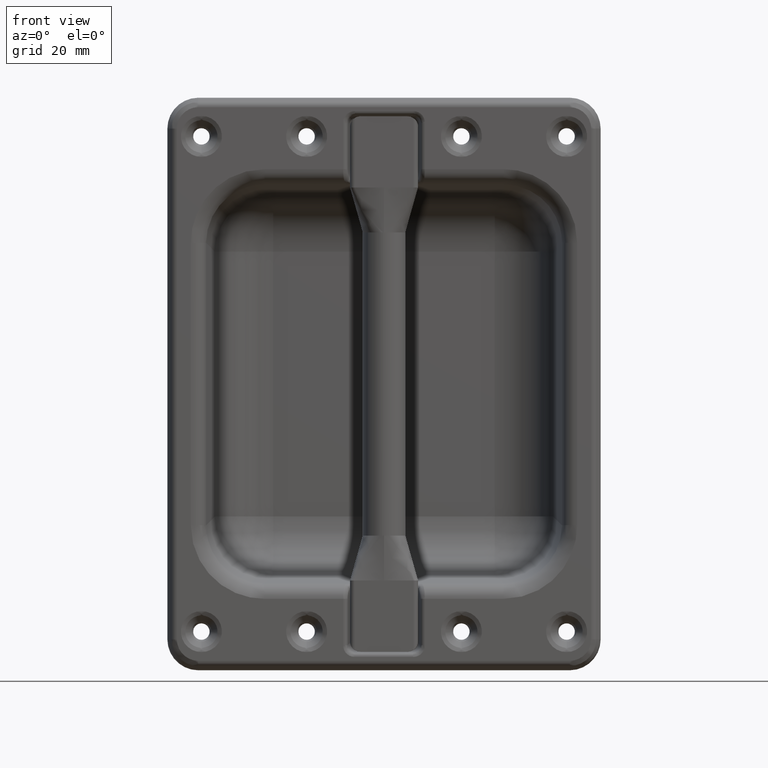
[diagram: clean part render]
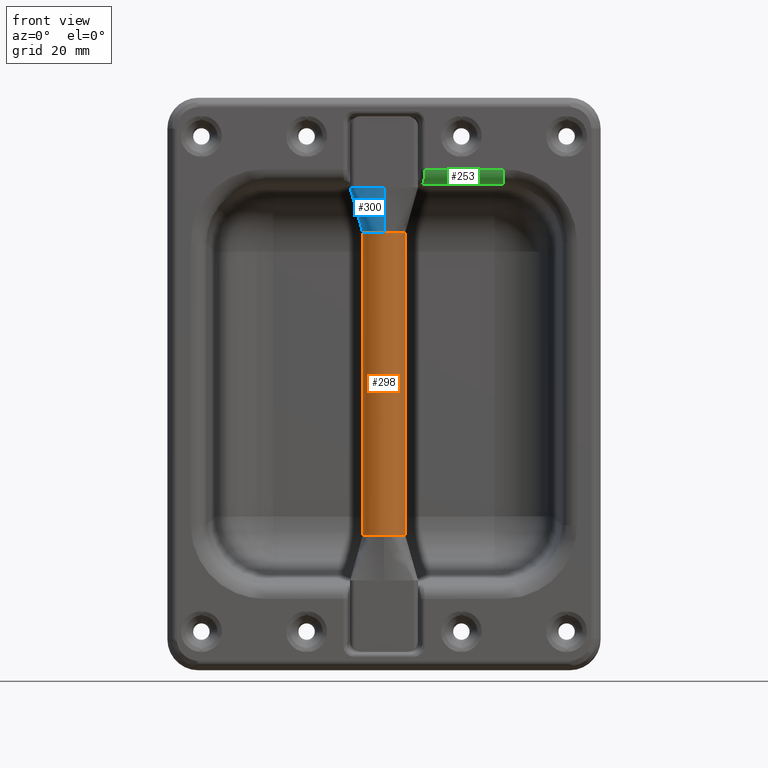
[diagram: same view with three faces highlighted in distinct colors, each labeled with its STEP entity id]
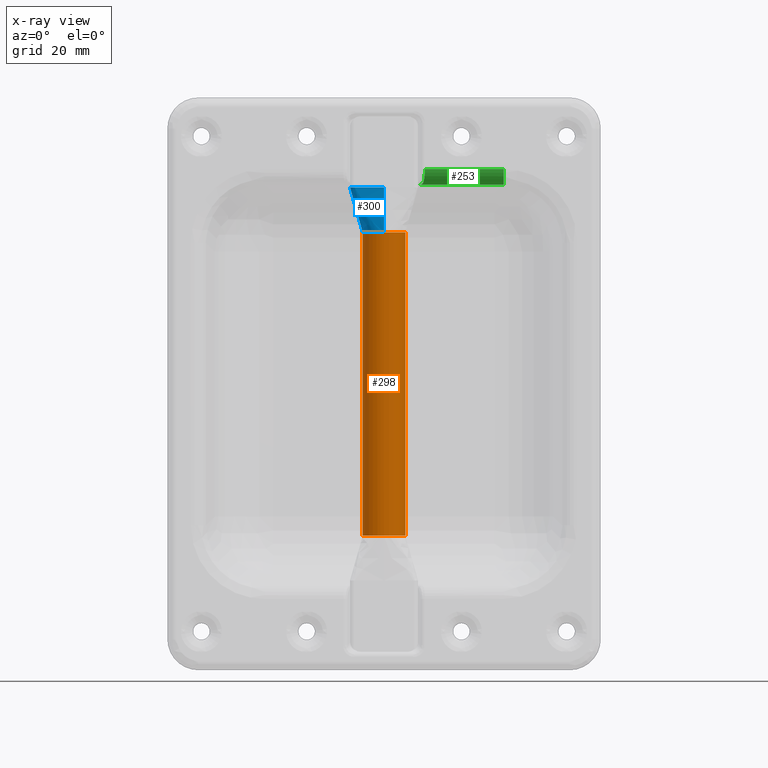
[diagram: x-ray of the same camera — body ghosted, the three highlighted faces saturated]
A machine part, front view with three faces highlighted in distinct colors.
The next image is the same camera in x-ray (body ghosted, the three faces saturated) — at least one of them is partly hidden behind the body in this view.
Their STEP definitions:

[orange] entity #298 — the highlighted cylindrical surface (edge-blend (fillet) strip) has radius 6.9 mm, axis along (-0, 0, -1).
#298=ADVANCED_FACE('',(#3039),#3038,.T.);
#3038=CYLINDRICAL_SURFACE('',#7398,6.90000000000E+00);
#3039=FACE_OUTER_BOUND('',#7399,.T.);
#7395=CARTESIAN_POINT('',(-3.55271367880E-15,7.20000000000E+00,-1.00000000000E+03));
#7396=DIRECTION('',(-0.00000000000E+00,0.00000000000E+00,-1.00000000000E+00));
#7397=DIRECTION('',(-1.00000000000E+00,0.00000000000E+00,0.00000000000E+00));
#7398=AXIS2_PLACEMENT_3D('',#7395,#7396,#7397);
#7399=EDGE_LOOP('',(#10406,#10407,#10408,#10409,#10410,#10411,#10412,#10413,#10414,#10415));
#10406=ORIENTED_EDGE('',*,*,#11604,.F.);
#10407=ORIENTED_EDGE('',*,*,#11605,.F.);
#10408=ORIENTED_EDGE('',*,*,#11606,.F.);
#10409=ORIENTED_EDGE('',*,*,#11607,.F.);
#10410=ORIENTED_EDGE('',*,*,#11598,.T.);
#10411=ORIENTED_EDGE('',*,*,#11595,.T.);
#10412=ORIENTED_EDGE('',*,*,#11594,.T.);
#10413=ORIENTED_EDGE('',*,*,#11591,.T.);
#10414=ORIENTED_EDGE('',*,*,#11590,.T.);
#10415=ORIENTED_EDGE('',*,*,#11603,.F.);
#11590=EDGE_CURVE('',#16101,#16094,#16102,.T.);
#11591=EDGE_CURVE('',#16108,#16101,#16109,.T.);
#11594=EDGE_CURVE('',#16127,#16108,#16128,.T.);
#11595=EDGE_CURVE('',#16134,#16127,#16135,.T.);
#11598=EDGE_CURVE('',#16154,#16134,#16155,.T.);
#11603=EDGE_CURVE('',#16182,#16094,#16189,.T.);
#11604=EDGE_CURVE('',#16195,#16182,#16196,.T.);
#11605=EDGE_CURVE('',#16202,#16195,#16203,.T.);
#11606=EDGE_CURVE('',#16209,#16202,#16210,.T.);
#11607=EDGE_CURVE('',#16154,#16209,#16216,.T.);
#16094=VERTEX_POINT('',#20480);
#16101=VERTEX_POINT('',#20487);
#16102=(BOUNDED_CURVE() B_SPLINE_CURVE(3,(#20488,#20489,#20490,#20491,#20492,#20493),.UNSPECIFIED.,.F.,.F.) B_SPLINE_CURVE_WITH_KNOTS((4,2,4),(3.75000000000E-01,4.37500000000E-01,5.00000000477E-01),.UNSPECIFIED.) CURVE() GEOMETRIC_REPRESENTATION_ITEM() RATIONAL_B_SPLINE_CURVE((1.00000000000E+00,1.00000000000E+00,1.00000000000E+00,1.00000000000E+00,1.00000000000E+00,1.00000000000E+00)) REPRESENTATION_ITEM('') );
#16108=VERTEX_POINT('',#20494);
#16109=(BOUNDED_CURVE() B_SPLINE_CURVE(3,(#20495,#20496,#20497,#20498,#20499,#20500),.UNSPECIFIED.,.F.,.F.) B_SPLINE_CURVE_WITH_KNOTS((4,2,4),(2.50000000000E-01,3.12500000000E-01,3.75000000000E-01),.UNSPECIFIED.) CURVE() GEOMETRIC_REPRESENTATION_ITEM() RATIONAL_B_SPLINE_CURVE((1.00000000000E+00,1.00000000000E+00,1.00000000000E+00,1.00000000000E+00,1.00000000000E+00,1.00000000000E+00)) REPRESENTATION_ITEM('') );
#16127=VERTEX_POINT('',#20505);
#16128=(BOUNDED_CURVE() B_SPLINE_CURVE(3,(#20506,#20507,#20508,#20509,#20510,#20511),.UNSPECIFIED.,.F.,.F.) B_SPLINE_CURVE_WITH_KNOTS((4,2,4),(1.25000000000E-01,1.87500000000E-01,2.50000000000E-01),.UNSPECIFIED.) CURVE() GEOMETRIC_REPRESENTATION_ITEM() RATIONAL_B_SPLINE_CURVE((1.00000000000E+00,1.00000000000E+00,1.00000000000E+00,1.00000000000E+00,1.00000000000E+00,1.00000000000E+00)) REPRESENTATION_ITEM('') );
#16134=VERTEX_POINT('',#20512);
#16135=(BOUNDED_CURVE() B_SPLINE_CURVE(3,(#20513,#20514,#20515,#20516,#20517,#20518),.UNSPECIFIED.,.F.,.F.) B_SPLINE_CURVE_WITH_KNOTS((4,2,4),(1.00000000000E+00,1.06250000000E+00,1.12500000000E+00),.UNSPECIFIED.) CURVE() GEOMETRIC_REPRESENTATION_ITEM() RATIONAL_B_SPLINE_CURVE((1.00000000000E+00,1.00000000000E+00,1.00000000000E+00,1.00000000000E+00,1.00000000000E+00,1.00000000000E+00)) REPRESENTATION_ITEM('') );
#16154=VERTEX_POINT('',#20532);
#16155=(BOUNDED_CURVE() B_SPLINE_CURVE(1,(#20533,#20534),.UNSPECIFIED.,.F.,.F.) B_SPLINE_CURVE_WITH_KNOTS((2,2),(8.33333332085E-02,9.16666666563E-01),.UNSPECIFIED.) CURVE() GEOMETRIC_REPRESENTATION_ITEM() RATIONAL_B_SPLINE_CURVE((1.00000000000E+00,1.00000000000E+00)) REPRESENTATION_ITEM('') );
#16182=VERTEX_POINT('',#20556);
#16189=(BOUNDED_CURVE() B_SPLINE_CURVE(1,(#20563,#20564),.UNSPECIFIED.,.F.,.F.) B_SPLINE_CURVE_WITH_KNOTS((2,2),(8.33333333333E-02,9.16666666667E-01),.UNSPECIFIED.) CURVE() GEOMETRIC_REPRESENTATION_ITEM() RATIONAL_B_SPLINE_CURVE((7.50000000000E-01,7.50000000000E-01)) REPRESENTATION_ITEM('') );
#16195=VERTEX_POINT('',#20565);
#16196=(BOUNDED_CURVE() B_SPLINE_CURVE(3,(#20566,#20567,#20568,#20569,#20570,#20571),.UNSPECIFIED.,.F.,.F.) B_SPLINE_CURVE_WITH_KNOTS((4,2,4),(-1.00000000000E+00,-7.50000000000E-01,-5.00000000000E-01),.UNSPECIFIED.) CURVE() GEOMETRIC_REPRESENTATION_ITEM() RATIONAL_B_SPLINE_CURVE((1.00000000000E+00,1.00000000000E+00,1.00000000000E+00,1.00000000000E+00,1.00000000000E+00,1.00000000000E+00)) REPRESENTATION_ITEM('') );
#16202=VERTEX_POINT('',#20572);
#16203=(BOUNDED_CURVE() B_SPLINE_CURVE(3,(#20573,#20574,#20575,#20576,#20577,#20578),.UNSPECIFIED.,.F.,.F.) B_SPLINE_CURVE_WITH_KNOTS((4,2,4),(-1.00000000000E+00,-5.00000000000E-01,-0.00000000000E+00),.UNSPECIFIED.) CURVE() GEOMETRIC_REPRESENTATION_ITEM() RATIONAL_B_SPLINE_CURVE((1.00000000000E+00,1.00000000000E+00,1.00000000000E+00,1.00000000000E+00,1.00000000000E+00,1.00000000000E+00)) REPRESENTATION_ITEM('') );
#16209=VERTEX_POINT('',#20579);
#16210=(BOUNDED_CURVE() B_SPLINE_CURVE(3,(#20580,#20581,#20582,#20583,#20584,#20585),.UNSPECIFIED.,.F.,.F.) B_SPLINE_CURVE_WITH_KNOTS((4,2,4),(-1.00000000000E+00,-5.00000000000E-01,-0.00000000000E+00),.UNSPECIFIED.) CURVE() GEOMETRIC_REPRESENTATION_ITEM() RATIONAL_B_SPLINE_CURVE((1.00000000000E+00,1.00000000000E+00,1.00000000000E+00,1.00000000000E+00,1.00000000000E+00,1.00000000000E+00)) REPRESENTATION_ITEM('') );
#16216=(BOUNDED_CURVE() B_SPLINE_CURVE(3,(#20586,#20587,#20588,#20589,#20590,#20591),.UNSPECIFIED.,.F.,.F.) B_SPLINE_CURVE_WITH_KNOTS((4,2,4),(-5.00000000000E-01,-2.50000000000E-01,-0.00000000000E+00),.UNSPECIFIED.) CURVE() GEOMETRIC_REPRESENTATION_ITEM() RATIONAL_B_SPLINE_CURVE((1.00000000000E+00,1.00000000000E+00,1.00000000000E+00,1.00000000000E+00,1.00000000000E+00,1.00000000000E+00)) REPRESENTATION_ITEM('') );
#20480=CARTESIAN_POINT('',(6.90000000000E+00,7.20000002066E+00,-4.90000000000E+01));
#20487=CARTESIAN_POINT('',(4.87903679019E+00,2.32096320981E+00,-4.90000000000E+01));
#20488=CARTESIAN_POINT('',(4.87903679019E+00,2.32096320981E+00,-4.90000000000E+01));
#20489=CARTESIAN_POINT('',(5.51770121255E+00,2.95962763217E+00,-4.90000000000E+01));
#20490=CARTESIAN_POINT('',(6.02912607964E+00,3.72502903544E+00,-4.90000000000E+01));
#20491=CARTESIAN_POINT('',(6.72041146901E+00,5.39393959792E+00,-4.90000000000E+01));
#20492=CARTESIAN_POINT('',(6.90000000000E+00,6.29679211209E+00,-4.90000000000E+01));
#20493=CARTESIAN_POINT('',(6.90000000000E+00,7.20000000689E+00,-4.90000000000E+01));
#20494=CARTESIAN_POINT('',(-1.56357441875E-15,3.00000000000E-01,-4.90000000000E+01));
#20495=CARTESIAN_POINT('',(-4.82018125501E-15,3.00000000000E-01,-4.90000000000E+01));
#20496=CARTESIAN_POINT('',(9.03207887907E-01,3.00000000000E-01,-4.90000000000E+01));
#20497=CARTESIAN_POINT('',(1.80606040208E+00,4.79588530989E-01,-4.90000000000E+01));
#20498=CARTESIAN_POINT('',(3.47497096456E+00,1.17087392036E+00,-4.90000000000E+01));
#20499=CARTESIAN_POINT('',(4.24037236783E+00,1.68229878745E+00,-4.90000000000E+01));
#20500=CARTESIAN_POINT('',(4.87903679019E+00,2.32096320981E+00,-4.90000000000E+01));
#20505=CARTESIAN_POINT('',(-4.87903679019E+00,2.32096320981E+00,-4.90000000000E+01));
#20506=CARTESIAN_POINT('',(-4.87903679019E+00,2.32096320981E+00,-4.90000000000E+01));
#20507=CARTESIAN_POINT('',(-4.24037236783E+00,1.68229878745E+00,-4.90000000000E+01));
#20508=CARTESIAN_POINT('',(-3.47497096456E+00,1.17087392036E+00,-4.90000000000E+01));
#20509=CARTESIAN_POINT('',(-1.80606040208E+00,4.79588530989E-01,-4.90000000000E+01));
#20510=CARTESIAN_POINT('',(-9.03207887907E-01,3.00000000000E-01,-4.90000000000E+01));
#20511=CARTESIAN_POINT('',(-4.21852393910E-15,3.00000000000E-01,-4.90000000000E+01));
#20512=CARTESIAN_POINT('',(-6.90000000000E+00,7.20000000000E+00,-4.90000000000E+01));
#20513=CARTESIAN_POINT('',(-6.90000000000E+00,7.20000000000E+00,-4.90000000000E+01));
#20514=CARTESIAN_POINT('',(-6.90000000000E+00,6.29679211209E+00,-4.90000000000E+01));
#20515=CARTESIAN_POINT('',(-6.72041146901E+00,5.39393959792E+00,-4.90000000000E+01));
#20516=CARTESIAN_POINT('',(-6.02912607964E+00,3.72502903544E+00,-4.90000000000E+01));
#20517=CARTESIAN_POINT('',(-5.51770121255E+00,2.95962763217E+00,-4.90000000000E+01));
#20518=CARTESIAN_POINT('',(-4.87903679019E+00,2.32096320981E+00,-4.90000000000E+01));
#20532=CARTESIAN_POINT('',(-6.90000000000E+00,7.20000000000E+00,4.90000000000E+01));
#20533=CARTESIAN_POINT('',(-6.90000000000E+00,7.20000000000E+00,4.90000000147E+01));
#20534=CARTESIAN_POINT('',(-6.90000000000E+00,7.20000000000E+00,-4.89999999878E+01));
#20556=CARTESIAN_POINT('',(6.90000000000E+00,7.20000000000E+00,4.90000000000E+01));
#20563=CARTESIAN_POINT('',(6.90000000000E+00,7.20000000000E+00,4.90000000000E+01));
#20564=CARTESIAN_POINT('',(6.90000000000E+00,7.20000000000E+00,-4.90000000000E+01));
#20565=CARTESIAN_POINT('',(4.87903679019E+00,2.32096320981E+00,4.90000000000E+01));
#20566=CARTESIAN_POINT('',(4.87903679019E+00,2.32096320981E+00,4.90000000000E+01));
#20567=CARTESIAN_POINT('',(5.34703504360E+00,2.78896146322E+00,4.90000000000E+01));
#20568=CARTESIAN_POINT('',(5.87511381225E+00,3.46312542305E+00,4.90000000000E+01));
#20569=CARTESIAN_POINT('',(6.65678815073E+00,5.15834248047E+00,4.90000000000E+01));
#20570=CARTESIAN_POINT('',(6.90000000000E+00,6.17611290671E+00,4.90000000000E+01));
#20571=CARTESIAN_POINT('',(6.90000000000E+00,7.20000000000E+00,4.90000000000E+01));
#20572=CARTESIAN_POINT('',(-1.56357441875E-15,3.00000000000E-01,4.90000000000E+01));
#20573=CARTESIAN_POINT('',(-1.68051336735E-15,3.00000000000E-01,4.90000000000E+01));
#20574=CARTESIAN_POINT('',(9.03207887908E-01,3.00000000000E-01,4.90000000000E+01));
#20575=CARTESIAN_POINT('',(1.64150753644E+00,4.48017265397E-01,4.90000000000E+01));
#20576=CARTESIAN_POINT('',(3.17978264951E+00,1.02158595249E+00,4.90000000000E+01));
#20577=CARTESIAN_POINT('',(4.00746891271E+00,1.44939533233E+00,4.90000000000E+01));
#20578=CARTESIAN_POINT('',(4.87903679019E+00,2.32096320981E+00,4.90000000000E+01));
#20579=CARTESIAN_POINT('',(-4.87903679019E+00,2.32096320981E+00,4.90000000000E+01));
#20580=CARTESIAN_POINT('',(-4.87903679019E+00,2.32096320981E+00,4.90000000000E+01));
#20581=CARTESIAN_POINT('',(-4.00746891271E+00,1.44939533233E+00,4.90000000000E+01));
#20582=CARTESIAN_POINT('',(-3.17978264951E+00,1.02158595249E+00,4.90000000000E+01));
#20583=CARTESIAN_POINT('',(-1.64150753644E+00,4.48017265397E-01,4.90000000000E+01));
#20584=CARTESIAN_POINT('',(-9.03207887906E-01,3.00000000000E-01,4.90000000000E+01));
#20585=CARTESIAN_POINT('',(-1.40946282423E-15,3.00000000000E-01,4.90000000000E+01));
#20586=CARTESIAN_POINT('',(-6.90000000000E+00,7.20000000000E+00,4.90000000000E+01));
#20587=CARTESIAN_POINT('',(-6.90000000000E+00,6.17611290671E+00,4.90000000000E+01));
#20588=CARTESIAN_POINT('',(-6.65678815073E+00,5.15834248047E+00,4.90000000000E+01));
#20589=CARTESIAN_POINT('',(-5.87511381226E+00,3.46312542305E+00,4.90000000000E+01));
#20590=CARTESIAN_POINT('',(-5.34703504360E+00,2.78896146322E+00,4.90000000000E+01));
#20591=CARTESIAN_POINT('',(-4.87903679019E+00,2.32096320981E+00,4.90000000000E+01));

[blue] entity #300 — the highlighted face is a freeform B-spline surface patch.
#300=ADVANCED_FACE('',(#3059),#3058,.F.);
#3058=( BOUNDED_SURFACE() B_SPLINE_SURFACE( 3,1,((#7437,#7438),(#7439,#7440),(#7441,#7442),(#7443,#7444),(#7445,#7446),(#7447,#7448),(#7449,#7450),(#7451,#7452),(#7453,#7454),(#7455,#7456),(#7457,#7458),(#7459,#7460),(#7461,#7462),(#7463,#7464),(#7465,#7466),(#7467,#7468),(#7469,#7470),(#7471,#7472)), .UNSPECIFIED.,.F.,.F.,.F.) B_SPLINE_SURFACE_WITH_KNOTS((4,2,2,2,2,2,2,2,4),(2,2),(5.00000000000E-01,5.81329306686E-01,6.62658613372E-01,7.06329306686E-01,7.50000000000E-01,7.93670693314E-01,8.37341386629E-01,9.18670693314E-01,1.00000000000E+00),(0.00000000000E+00,1.00000000000E+00), .UNSPECIFIED. ) GEOMETRIC_REPRESENTATION_ITEM() RATIONAL_B_SPLINE_SURFACE(((1.00000000000E+00,1.00000000000E+00),(1.00000000000E+00,1.00000000000E+00),(1.00000000000E+00,1.00000000000E+00),(1.00000000000E+00,1.00000000000E+00),(1.00000000000E+00,1.00000000000E+00),(1.00000000000E+00,1.00000000000E+00),(1.00000000000E+00,1.00000000000E+00),(1.00000000000E+00,1.00000000000E+00),(1.00000000000E+00,1.00000000000E+00),(1.00000000000E+00,1.00000000000E+00),(1.00000000000E+00,1.00000000000E+00),(1.00000000000E+00,1.00000000000E+00),(1.00000000000E+00,1.00000000000E+00),(1.00000000000E+00,1.00000000000E+00),(1.00000000000E+00,1.00000000000E+00),(1.00000000000E+00,1.00000000000E+00),(1.00000000000E+00,1.00000000000E+00),(1.00000000000E+00,1.00000000000E+00))) REPRESENTATION_ITEM('') SURFACE() );
#3059=FACE_OUTER_BOUND('',#7473,.T.);
#7437=CARTESIAN_POINT('',(-1.23080434733E-11,3.30000000000E+00,6.35000000000E+01));
#7438=CARTESIAN_POINT('',(1.05471187339E-15,1.41000000000E+01,4.90000000000E+01));
#7439=CARTESIAN_POINT('',(-1.58333333334E+00,3.30000000000E+00,6.35000000000E+01));
#7440=CARTESIAN_POINT('',(-9.03207887906E-01,1.41000000000E+01,4.90000000000E+01));
#7441=CARTESIAN_POINT('',(-3.46468162786E+00,3.30000000000E+00,6.35000000000E+01));
#7442=CARTESIAN_POINT('',(-1.64150753644E+00,1.39519827346E+01,4.90000000000E+01));
#7443=CARTESIAN_POINT('',(-6.92936325570E+00,3.30000000000E+00,6.35000000000E+01));
#7444=CARTESIAN_POINT('',(-3.17978264951E+00,1.33784140475E+01,4.90000000000E+01));
#7445=CARTESIAN_POINT('',(-8.51269658904E+00,3.30000000000E+00,6.35000000000E+01));
#7446=CARTESIAN_POINT('',(-4.00746891271E+00,1.29506046677E+01,4.90000000000E+01));
#7447=CARTESIAN_POINT('',(-1.00301437603E+01,3.30000000000E+00,6.35000000000E+01));
#7448=CARTESIAN_POINT('',(-5.34703504360E+00,1.16110385368E+01,4.90000000000E+01));
#7449=CARTESIAN_POINT('',(-1.04273741569E+01,3.03733233797E+00,6.35000000000E+01));
#7450=CARTESIAN_POINT('',(-5.87511381226E+00,1.09368745769E+01,4.90000000000E+01));
#7451=CARTESIAN_POINT('',(-1.09009714386E+01,2.45444111248E+00,6.35000000000E+01));
#7452=CARTESIAN_POINT('',(-6.65678815073E+00,9.24165751953E+00,4.90000000000E+01));
#7453=CARTESIAN_POINT('',(-1.10000000000E+01,2.12397674240E+00,6.35000000000E+01));
#7454=CARTESIAN_POINT('',(-6.90000000000E+00,8.22388709329E+00,4.90000000000E+01));
#7455=CARTESIAN_POINT('',(-1.10000000000E+01,1.47602325760E+00,6.35000000000E+01));
#7456=CARTESIAN_POINT('',(-6.90000000000E+00,6.17611290671E+00,4.90000000000E+01));
#7457=CARTESIAN_POINT('',(-1.09009714386E+01,1.14555888752E+00,6.35000000000E+01));
#7458=CARTESIAN_POINT('',(-6.65678815073E+00,5.15834248047E+00,4.90000000000E+01));
#7459=CARTESIAN_POINT('',(-1.04273741569E+01,5.62667662032E-01,6.35000000000E+01));
#7460=CARTESIAN_POINT('',(-5.87511381226E+00,3.46312542305E+00,4.90000000000E+01));
#7461=CARTESIAN_POINT('',(-1.00301437603E+01,3.00000000000E-01,6.35000000000E+01));
#7462=CARTESIAN_POINT('',(-5.34703504360E+00,2.78896146322E+00,4.90000000000E+01));
#7463=CARTESIAN_POINT('',(-8.51269658904E+00,3.00000000000E-01,6.35000000000E+01));
#7464=CARTESIAN_POINT('',(-4.00746891271E+00,1.44939533233E+00,4.90000000000E+01));
#7465=CARTESIAN_POINT('',(-6.92936325570E+00,3.00000000000E-01,6.35000000000E+01));
#7466=CARTESIAN_POINT('',(-3.17978264951E+00,1.02158595249E+00,4.90000000000E+01));
#7467=CARTESIAN_POINT('',(-3.46468162786E+00,3.00000000000E-01,6.35000000000E+01));
#7468=CARTESIAN_POINT('',(-1.64150753644E+00,4.48017265397E-01,4.90000000000E+01));
#7469=CARTESIAN_POINT('',(-1.58333333334E+00,3.00000000000E-01,6.35000000000E+01));
#7470=CARTESIAN_POINT('',(-9.03207887906E-01,3.00000000000E-01,4.90000000000E+01));
#7471=CARTESIAN_POINT('',(-1.23072663172E-11,3.00000000000E-01,6.35000000000E+01));
#7472=CARTESIAN_POINT('',(-1.38777878078E-15,3.00000000000E-01,4.90000000000E+01));
#7473=EDGE_LOOP('',(#10425,#10426,#10427,#10428,#10429,#10430,#10431,#10432,#10433));
#10425=ORIENTED_EDGE('',*,*,#11600,.T.);
#10426=ORIENTED_EDGE('',*,*,#11599,.T.);
#10427=ORIENTED_EDGE('',*,*,#11607,.T.);
#10428=ORIENTED_EDGE('',*,*,#11606,.T.);
#10429=ORIENTED_EDGE('',*,*,#11608,.F.);
#10430=ORIENTED_EDGE('',*,*,#10953,.T.);
#10431=ORIENTED_EDGE('',*,*,#11128,.F.);
#10432=ORIENTED_EDGE('',*,*,#11585,.T.);
#10433=ORIENTED_EDGE('',*,*,#11609,.T.);
#10953=EDGE_CURVE('',#11884,#11877,#11885,.T.);
#11128=EDGE_CURVE('',#13058,#11877,#13065,.T.);
#11585=EDGE_CURVE('',#13058,#16060,#16067,.T.);
#11599=EDGE_CURVE('',#16161,#16154,#16162,.T.);
#11600=EDGE_CURVE('',#16168,#16161,#16169,.T.);
#11606=EDGE_CURVE('',#16209,#16202,#16210,.T.);
#11607=EDGE_CURVE('',#16154,#16209,#16216,.T.);
#11608=EDGE_CURVE('',#11884,#16202,#16222,.T.);
#11609=EDGE_CURVE('',#16060,#16168,#16228,.T.);
#11877=VERTEX_POINT('',#17717);
#11884=VERTEX_POINT('',#17721);
#11885=(BOUNDED_CURVE() B_SPLINE_CURVE(3,(#17722,#17723,#17724,#17725,#17726,#17727),.UNSPECIFIED.,.F.,.F.) B_SPLINE_CURVE_WITH_KNOTS((4,2,4),(-1.00000000000E+00,-5.00000000000E-01,-0.00000000000E+00),.UNSPECIFIED.) CURVE() GEOMETRIC_REPRESENTATION_ITEM() RATIONAL_B_SPLINE_CURVE((1.00000000000E+00,1.00000000000E+00,1.00000000000E+00,1.00000000000E+00,1.00000000000E+00,1.00000000000E+00)) REPRESENTATION_ITEM('') );
#13058=VERTEX_POINT('',#18479);
#13065=(BOUNDED_CURVE() B_SPLINE_CURVE(3,(#18483,#18484,#18485,#18486,#18487,#18488,#18489,#18490,#18491,#18492,#18493,#18494,#18495,#18496,#18497,#18498,#18499,#18500),.UNSPECIFIED.,.F.,.F.) B_SPLINE_CURVE_WITH_KNOTS((4,2,2,2,2,2,2,2,4),(-1.00000000000E+00,-8.75000000000E-01,-7.50000000000E-01,-6.25000000000E-01,-5.00000000000E-01,-3.75000000000E-01,-2.50000000000E-01,-1.25000000000E-01,-0.00000000000E+00),.UNSPECIFIED.) CURVE() GEOMETRIC_REPRESENTATION_ITEM() RATIONAL_B_SPLINE_CURVE((1.00000000000E+00,1.00000000000E+00,1.00000000000E+00,1.00000000000E+00,1.00000000000E+00,1.00000000000E+00,1.00000000000E+00,1.00000000000E+00,1.00000000000E+00,1.00000000000E+00,1.00000000000E+00,1.00000000000E+00,1.00000000000E+00,1.00000000000E+00,1.00000000000E+00,1.00000000000E+00,1.00000000000E+00,1.00000000000E+00)) REPRESENTATION_ITEM('') );
#16060=VERTEX_POINT('',#20454);
#16067=(BOUNDED_CURVE() B_SPLINE_CURVE(3,(#20461,#20462,#20463,#20464,#20465,#20466),.UNSPECIFIED.,.F.,.F.) B_SPLINE_CURVE_WITH_KNOTS((4,2,4),(-1.00000000000E+00,-5.00000000000E-01,-0.00000000000E+00),.UNSPECIFIED.) CURVE() GEOMETRIC_REPRESENTATION_ITEM() RATIONAL_B_SPLINE_CURVE((1.00000000000E+00,1.00000000000E+00,1.00000000000E+00,1.00000000000E+00,1.00000000000E+00,1.00000000000E+00)) REPRESENTATION_ITEM('') );
#16154=VERTEX_POINT('',#20532);
#16161=VERTEX_POINT('',#20535);
#16162=(BOUNDED_CURVE() B_SPLINE_CURVE(3,(#20536,#20537,#20538,#20539,#20540,#20541),.UNSPECIFIED.,.F.,.F.) B_SPLINE_CURVE_WITH_KNOTS((4,2,4),(-1.00000000000E+00,-7.50000000000E-01,-5.00000000000E-01),.UNSPECIFIED.) CURVE() GEOMETRIC_REPRESENTATION_ITEM() RATIONAL_B_SPLINE_CURVE((1.00000000000E+00,1.00000000000E+00,1.00000000000E+00,1.00000000000E+00,1.00000000000E+00,1.00000000000E+00)) REPRESENTATION_ITEM('') );
#16168=VERTEX_POINT('',#20542);
#16169=(BOUNDED_CURVE() B_SPLINE_CURVE(3,(#20543,#20544,#20545,#20546,#20547,#20548),.UNSPECIFIED.,.F.,.F.) B_SPLINE_CURVE_WITH_KNOTS((4,2,4),(-1.00000000000E+00,-5.00000000000E-01,-0.00000000000E+00),.UNSPECIFIED.) CURVE() GEOMETRIC_REPRESENTATION_ITEM() RATIONAL_B_SPLINE_CURVE((1.00000000000E+00,1.00000000000E+00,1.00000000000E+00,1.00000000000E+00,1.00000000000E+00,1.00000000000E+00)) REPRESENTATION_ITEM('') );
#16202=VERTEX_POINT('',#20572);
#16209=VERTEX_POINT('',#20579);
#16210=(BOUNDED_CURVE() B_SPLINE_CURVE(3,(#20580,#20581,#20582,#20583,#20584,#20585),.UNSPECIFIED.,.F.,.F.) B_SPLINE_CURVE_WITH_KNOTS((4,2,4),(-1.00000000000E+00,-5.00000000000E-01,-0.00000000000E+00),.UNSPECIFIED.) CURVE() GEOMETRIC_REPRESENTATION_ITEM() RATIONAL_B_SPLINE_CURVE((1.00000000000E+00,1.00000000000E+00,1.00000000000E+00,1.00000000000E+00,1.00000000000E+00,1.00000000000E+00)) REPRESENTATION_ITEM('') );
#16216=(BOUNDED_CURVE() B_SPLINE_CURVE(3,(#20586,#20587,#20588,#20589,#20590,#20591),.UNSPECIFIED.,.F.,.F.) B_SPLINE_CURVE_WITH_KNOTS((4,2,4),(-5.00000000000E-01,-2.50000000000E-01,-0.00000000000E+00),.UNSPECIFIED.) CURVE() GEOMETRIC_REPRESENTATION_ITEM() RATIONAL_B_SPLINE_CURVE((1.00000000000E+00,1.00000000000E+00,1.00000000000E+00,1.00000000000E+00,1.00000000000E+00,1.00000000000E+00)) REPRESENTATION_ITEM('') );
#16222=(BOUNDED_CURVE() B_SPLINE_CURVE(1,(#20592,#20593),.UNSPECIFIED.,.F.,.F.) B_SPLINE_CURVE_WITH_KNOTS((2,2),(0.00000000000E+00,1.00000000000E+00),.UNSPECIFIED.) CURVE() GEOMETRIC_REPRESENTATION_ITEM() RATIONAL_B_SPLINE_CURVE((1.00000000000E+00,1.00000000000E+00)) REPRESENTATION_ITEM('') );
#16228=(BOUNDED_CURVE() B_SPLINE_CURVE(1,(#20594,#20595),.UNSPECIFIED.,.F.,.F.) B_SPLINE_CURVE_WITH_KNOTS((2,2),(0.00000000000E+00,1.00000000000E+00),.UNSPECIFIED.) CURVE() GEOMETRIC_REPRESENTATION_ITEM() RATIONAL_B_SPLINE_CURVE((1.00000000000E+00,1.00000000000E+00)) REPRESENTATION_ITEM('') );
#17717=CARTESIAN_POINT('',(-9.50000000000E+00,3.00000000000E-01,6.35000000000E+01));
#17721=CARTESIAN_POINT('',(-1.23073209610E-11,3.00000000000E-01,6.35000000000E+01));
#17722=CARTESIAN_POINT('',(-1.23073209610E-11,3.00000000000E-01,6.35000000000E+01));
#17723=CARTESIAN_POINT('',(-1.58333333334E+00,3.00000000000E-01,6.35000000000E+01));
#17724=CARTESIAN_POINT('',(-3.46468162786E+00,3.00000000000E-01,6.35000000000E+01));
#17725=CARTESIAN_POINT('',(-6.92936325570E+00,3.00000000000E-01,6.35000000000E+01));
#17726=CARTESIAN_POINT('',(-8.51269658903E+00,3.00000000000E-01,6.35000000000E+01));
#17727=CARTESIAN_POINT('',(-9.50000000000E+00,3.00000000000E-01,6.35000000000E+01));
#18479=CARTESIAN_POINT('',(-9.50000000000E+00,3.30000000000E+00,6.35000000000E+01));
#18483=CARTESIAN_POINT('',(-9.50000000000E+00,3.30000000000E+00,6.35000000000E+01));
#18484=CARTESIAN_POINT('',(-9.69634954085E+00,3.30000000000E+00,6.35000000000E+01));
#18485=CARTESIAN_POINT('',(-9.89262182654E+00,3.26095901500E+00,6.35000000000E+01));
#18486=CARTESIAN_POINT('',(-1.02554284706E+01,3.11067958253E+00,6.35000000000E+01));
#18487=CARTESIAN_POINT('',(-1.04218200800E+01,2.99950026360E+00,6.35000000000E+01));
#18488=CARTESIAN_POINT('',(-1.06995002636E+01,2.72182007996E+00,6.35000000000E+01));
#18489=CARTESIAN_POINT('',(-1.08106795825E+01,2.55542847056E+00,6.35000000000E+01));
#18490=CARTESIAN_POINT('',(-1.09609590150E+01,2.19262182654E+00,6.35000000000E+01));
#18491=CARTESIAN_POINT('',(-1.10000000000E+01,1.99634954085E+00,6.35000000000E+01));
#18492=CARTESIAN_POINT('',(-1.10000000000E+01,1.60365045915E+00,6.35000000000E+01));
#18493=CARTESIAN_POINT('',(-1.09609590150E+01,1.40737817346E+00,6.35000000000E+01));
#18494=CARTESIAN_POINT('',(-1.08106795825E+01,1.04457152944E+00,6.35000000000E+01));
#18495=CARTESIAN_POINT('',(-1.06995002636E+01,8.78179920037E-01,6.35000000000E+01));
#18496=CARTESIAN_POINT('',(-1.04218200800E+01,6.00499736403E-01,6.35000000000E+01));
#18497=CARTESIAN_POINT('',(-1.02554284706E+01,4.89320417469E-01,6.35000000000E+01));
#18498=CARTESIAN_POINT('',(-9.89262182654E+00,3.39040984998E-01,6.35000000000E+01));
#18499=CARTESIAN_POINT('',(-9.69634954085E+00,3.00000000000E-01,6.35000000000E+01));
#18500=CARTESIAN_POINT('',(-9.50000000000E+00,3.00000000000E-01,6.35000000000E+01));
#20454=CARTESIAN_POINT('',(-1.23078630621E-11,3.30000000000E+00,6.35000000000E+01));
#20461=CARTESIAN_POINT('',(-9.50000000000E+00,3.30000000000E+00,6.35000000000E+01));
#20462=CARTESIAN_POINT('',(-8.51269658904E+00,3.30000000000E+00,6.35000000000E+01));
#20463=CARTESIAN_POINT('',(-6.92936325570E+00,3.30000000000E+00,6.35000000000E+01));
#20464=CARTESIAN_POINT('',(-3.46468162786E+00,3.30000000000E+00,6.35000000000E+01));
#20465=CARTESIAN_POINT('',(-1.58333333334E+00,3.30000000000E+00,6.35000000000E+01));
#20466=CARTESIAN_POINT('',(-1.23079714823E-11,3.30000000000E+00,6.35000000000E+01));
#20532=CARTESIAN_POINT('',(-6.90000000000E+00,7.20000000000E+00,4.90000000000E+01));
#20535=CARTESIAN_POINT('',(-4.87903679019E+00,1.20790367902E+01,4.90000000000E+01));
#20536=CARTESIAN_POINT('',(-4.87903679019E+00,1.20790367902E+01,4.90000000000E+01));
#20537=CARTESIAN_POINT('',(-5.34703504360E+00,1.16110385368E+01,4.90000000000E+01));
#20538=CARTESIAN_POINT('',(-5.87511381226E+00,1.09368745769E+01,4.90000000000E+01));
#20539=CARTESIAN_POINT('',(-6.65678815073E+00,9.24165751953E+00,4.90000000000E+01));
#20540=CARTESIAN_POINT('',(-6.90000000000E+00,8.22388709329E+00,4.90000000000E+01));
#20541=CARTESIAN_POINT('',(-6.90000000000E+00,7.20000000000E+00,4.90000000000E+01));
#20542=CARTESIAN_POINT('',(1.11146211282E-15,1.41000000000E+01,4.90000000000E+01));
#20543=CARTESIAN_POINT('',(1.08420217249E-15,1.41000000000E+01,4.90000000000E+01));
#20544=CARTESIAN_POINT('',(-9.03207887906E-01,1.41000000000E+01,4.90000000000E+01));
#20545=CARTESIAN_POINT('',(-1.64150753644E+00,1.39519827346E+01,4.90000000000E+01));
#20546=CARTESIAN_POINT('',(-3.17978264951E+00,1.33784140475E+01,4.90000000000E+01));
#20547=CARTESIAN_POINT('',(-4.00746891271E+00,1.29506046677E+01,4.90000000000E+01));
#20548=CARTESIAN_POINT('',(-4.87903679019E+00,1.20790367902E+01,4.90000000000E+01));
#20572=CARTESIAN_POINT('',(-1.56357441875E-15,3.00000000000E-01,4.90000000000E+01));
#20579=CARTESIAN_POINT('',(-4.87903679019E+00,2.32096320981E+00,4.90000000000E+01));
#20580=CARTESIAN_POINT('',(-4.87903679019E+00,2.32096320981E+00,4.90000000000E+01));
#20581=CARTESIAN_POINT('',(-4.00746891271E+00,1.44939533233E+00,4.90000000000E+01));
#20582=CARTESIAN_POINT('',(-3.17978264951E+00,1.02158595249E+00,4.90000000000E+01));
#20583=CARTESIAN_POINT('',(-1.64150753644E+00,4.48017265397E-01,4.90000000000E+01));
#20584=CARTESIAN_POINT('',(-9.03207887906E-01,3.00000000000E-01,4.90000000000E+01));
#20585=CARTESIAN_POINT('',(-1.40946282423E-15,3.00000000000E-01,4.90000000000E+01));
#20586=CARTESIAN_POINT('',(-6.90000000000E+00,7.20000000000E+00,4.90000000000E+01));
#20587=CARTESIAN_POINT('',(-6.90000000000E+00,6.17611290671E+00,4.90000000000E+01));
#20588=CARTESIAN_POINT('',(-6.65678815073E+00,5.15834248047E+00,4.90000000000E+01));
#20589=CARTESIAN_POINT('',(-5.87511381226E+00,3.46312542305E+00,4.90000000000E+01));
#20590=CARTESIAN_POINT('',(-5.34703504360E+00,2.78896146322E+00,4.90000000000E+01));
#20591=CARTESIAN_POINT('',(-4.87903679019E+00,2.32096320981E+00,4.90000000000E+01));
#20592=CARTESIAN_POINT('',(-1.23078630621E-11,3.00000000000E-01,6.35000000000E+01));
#20593=CARTESIAN_POINT('',(-1.68051336735E-15,3.00000000000E-01,4.90000000000E+01));
#20594=CARTESIAN_POINT('',(2.08710826399E-12,3.30000000000E+00,6.35000000000E+01));
#20595=CARTESIAN_POINT('',(8.21270829121E-12,1.41000000000E+01,4.90000000000E+01));

[green] entity #253 — the highlighted cylindrical surface (edge-blend (fillet) strip) has radius 5 mm, axis along (1, -0, -0).
#253=ADVANCED_FACE('',(#2585),#2584,.T.);
#2584=CYLINDRICAL_SURFACE('',#6841,5.00000000000E+00);
#2585=FACE_OUTER_BOUND('',#6842,.T.);
#6838=CARTESIAN_POINT('',(0.00000000000E+00,5.00000000000E+00,6.94236263228E+01));
#6839=DIRECTION('',(1.00000000000E+00,-0.00000000000E+00,-0.00000000000E+00));
#6840=DIRECTION('',(-0.00000000000E+00,-0.00000000000E+00,-1.00000000000E+00));
#6841=AXIS2_PLACEMENT_3D('',#6838,#6839,#6840);
#6842=EDGE_LOOP('',(#10191,#10192,#10193,#10194,#10195));
#10191=ORIENTED_EDGE('',*,*,#11259,.T.);
#10192=ORIENTED_EDGE('',*,*,#11513,.T.);
#10193=ORIENTED_EDGE('',*,*,#11535,.T.);
#10194=ORIENTED_EDGE('',*,*,#11517,.T.);
#10195=ORIENTED_EDGE('',*,*,#11536,.F.);
#11259=EDGE_CURVE('',#13952,#13945,#13953,.T.);
#11513=EDGE_CURVE('',#13945,#15601,#15608,.T.);
#11517=EDGE_CURVE('',#15621,#15634,#15635,.T.);
#11535=EDGE_CURVE('',#15601,#15621,#15749,.T.);
#11536=EDGE_CURVE('',#13952,#15634,#15755,.T.);
#13945=VERTEX_POINT('',#19091);
#13952=VERTEX_POINT('',#19095);
#13953=LINE('',#19096,#19097);
#15601=VERTEX_POINT('',#20162);
#15608=(BOUNDED_CURVE() B_SPLINE_CURVE(2,(#20167,#20168,#20169),.UNSPECIFIED.,.F.,.F.) B_SPLINE_CURVE_WITH_KNOTS((3,3),(-3.14159265359E+00,-2.05200724721E+00),.UNSPECIFIED.) CURVE() GEOMETRIC_REPRESENTATION_ITEM() RATIONAL_B_SPLINE_CURVE((1.00000000000E+00,8.55234738824E-01,1.00000000000E+00)) REPRESENTATION_ITEM('') );
#15621=VERTEX_POINT('',#20175);
#15634=VERTEX_POINT('',#20183);
#15635=LINE('',#20184,#20185);
#15749=(BOUNDED_CURVE() B_SPLINE_CURVE(3,(#20248,#20249,#20250,#20251,#20252,#20253,#20254,#20255,#20256,#20257),.UNSPECIFIED.,.F.,.F.) B_SPLINE_CURVE_WITH_KNOTS((4,2,2,2,4),(0.00000000000E+00,5.22689515550E-04,1.04537903110E-03,1.56806854665E-03,2.09075806220E-03),.UNSPECIFIED.) CURVE() GEOMETRIC_REPRESENTATION_ITEM() RATIONAL_B_SPLINE_CURVE((1.00000000000E+00,1.00000000000E+00,1.00000000000E+00,1.00000000000E+00,1.00000000000E+00,1.00000000000E+00,1.00000000000E+00,1.00000000000E+00,1.00000000000E+00,1.00000000000E+00)) REPRESENTATION_ITEM('') );
#15755=CIRCLE('',#20261,5.00000000000E+00);
#19091=CARTESIAN_POINT('',(1.32128126954E+01,0.00000000000E+00,6.94236263228E+01));
#19095=CARTESIAN_POINT('',(3.86025186834E+01,0.00000000000E+00,6.94236263228E+01));
#19096=CARTESIAN_POINT('',(3.86025186834E+01,0.00000000000E+00,6.94236263228E+01));
#19097=VECTOR('',#19098,2.53897059880E+01);
#19098=DIRECTION('',(-1.00000000000E+00,0.00000000000E+00,0.00000000000E+00));
#20162=CARTESIAN_POINT('',(1.26431112437E+01,2.68573541509E+00,6.49914508489E+01));
#20167=CARTESIAN_POINT('',(1.32128126954E+01,0.00000000000E+00,6.94236263228E+01));
#20168=CARTESIAN_POINT('',(1.32128126954E+01,-3.46255754753E-14,6.63938101175E+01));
#20169=CARTESIAN_POINT('',(1.26431112437E+01,2.68573541509E+00,6.49914508489E+01));
#20175=CARTESIAN_POINT('',(1.16536429949E+01,4.39065328298E+00,6.44608955646E+01));
#20183=CARTESIAN_POINT('',(3.86025186834E+01,4.39065328296E+00,6.44608955646E+01));
#20184=CARTESIAN_POINT('',(1.16536429950E+01,4.39065328298E+00,6.44608955646E+01));
#20185=VECTOR('',#20186,2.69488756885E+01);
#20186=DIRECTION('',(1.00000000000E+00,0.00000000000E+00,0.00000000000E+00));
#20248=CARTESIAN_POINT('',(1.26431112437E+01,2.68573541509E+00,6.49914508489E+01));
#20249=CARTESIAN_POINT('',(1.26106175557E+01,2.83891994426E+00,6.49114654032E+01));
#20250=CARTESIAN_POINT('',(1.25682104493E+01,2.99291363748E+00,6.48411574077E+01));
#20251=CARTESIAN_POINT('',(1.24593125899E+01,3.30048626889E+00,6.47184089950E+01));
#20252=CARTESIAN_POINT('',(1.23920382652E+01,3.45550996994E+00,6.46656264317E+01));
#20253=CARTESIAN_POINT('',(1.22310381715E+01,3.75310981103E+00,6.45791163090E+01));
#20254=CARTESIAN_POINT('',(1.21376201760E+01,3.89599284617E+00,6.45451152535E+01));
#20255=CARTESIAN_POINT('',(1.19176088897E+01,4.16430905826E+00,6.44920624026E+01));
#20256=CARTESIAN_POINT('',(1.17927508673E+01,4.28704900452E+00,6.44736165704E+01));
#20257=CARTESIAN_POINT('',(1.16536429949E+01,4.39065328295E+00,6.44608955646E+01));
#20258=CARTESIAN_POINT('',(3.86025186834E+01,5.00000000000E+00,6.94236263228E+01));
#20259=DIRECTION('',(1.00000000000E+00,0.00000000000E+00,-0.00000000000E+00));
#20260=DIRECTION('',(-0.00000000000E+00,-0.00000000000E+00,-1.00000000000E+00));
#20261=AXIS2_PLACEMENT_3D('',#20258,#20259,#20260);